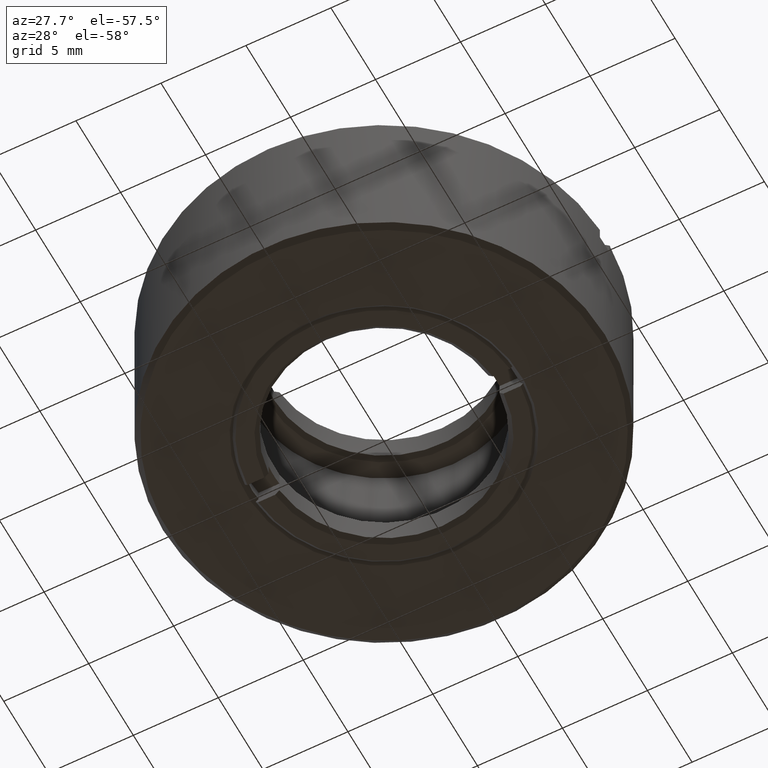
[diagram: clean part render]
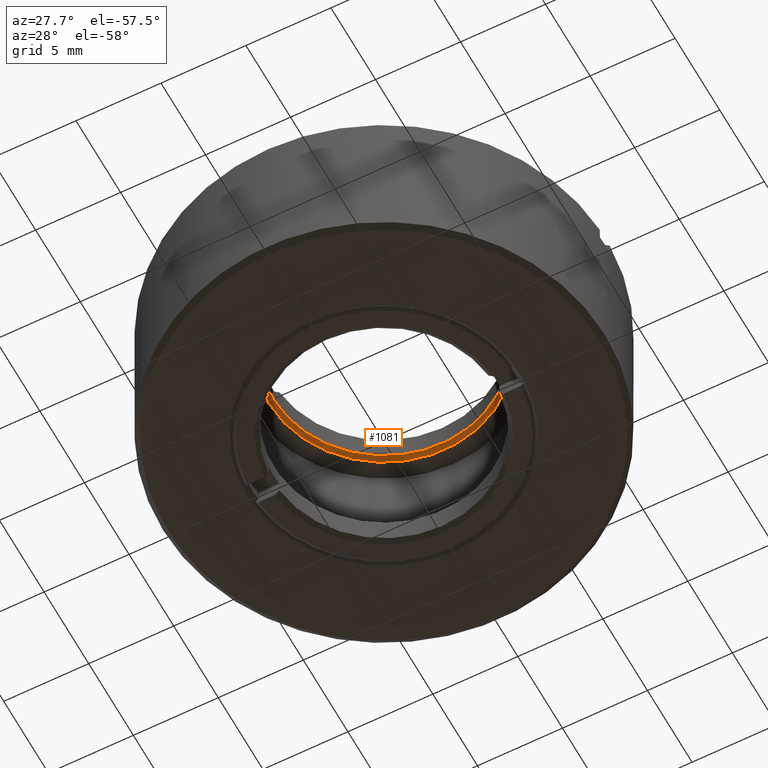
[diagram: same view with one face highlighted and labeled with its STEP entity id]
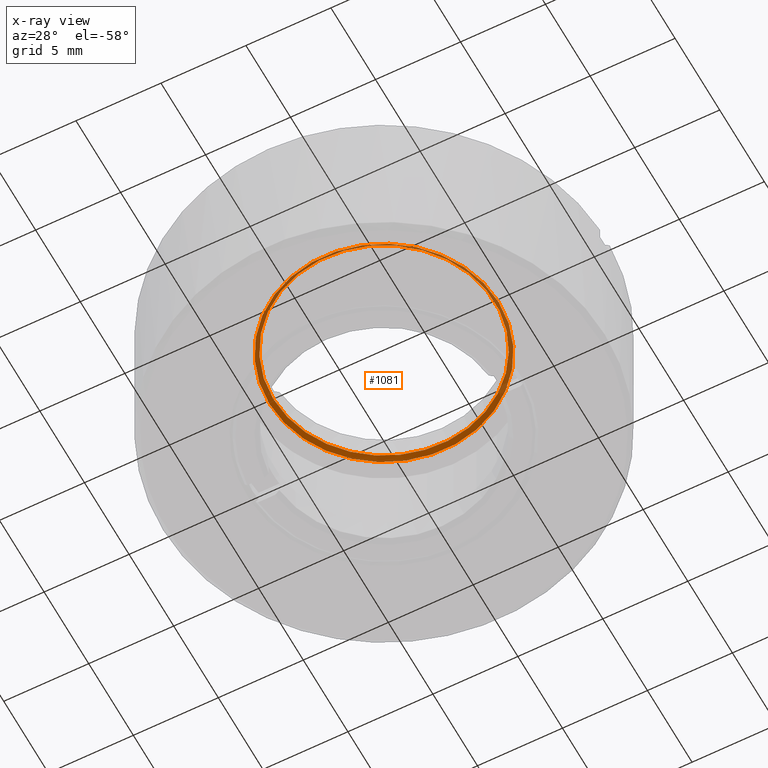
[diagram: x-ray of the same camera — body ghosted, the highlighted face saturated]
A machine part, auxiliary view. The second image highlights one B-rep face of the part: STEP entity #1081.
The next image is the same camera in x-ray: the body ghosted, the highlighted face saturated — about 45% of this face is hidden behind the body in this view.
In plain terms, the highlighted conical surface has half-angle 45 deg.
Its self-contained STEP definition (entity closure, byte-faithful):
#236 = FACE_BOUND ( 'NONE', #389, .T. ) ;
#269 = VERTEX_POINT ( 'NONE', #525 ) ;
#273 = FACE_OUTER_BOUND ( 'NONE', #1245, .T. ) ;
#298 = CONICAL_SURFACE ( 'NONE', #788, 6.749999999897227099, 0.7853981632837614413 ) ;
#377 = DIRECTION ( 'NONE',  ( 0.000000000000000000, 0.000000000000000000, -1.000000000000000000 ) ) ;
#389 = EDGE_LOOP ( 'NONE', ( #548 ) ) ;
#456 = ORIENTED_EDGE ( 'NONE', *, *, #1191, .T. ) ;
#483 = DIRECTION ( 'NONE',  ( -1.000000000000000000, 0.000000000000000000, 0.000000000000000000 ) ) ;
#510 = CARTESIAN_POINT ( 'NONE',  ( 0.000000000000000000, 0.000000000000000000, 3.000000000104137143 ) ) ;
#525 = CARTESIAN_POINT ( 'NONE',  ( -6.749999999954070518, 0.000000000000000000, 3.000000000047293724 ) ) ;
#548 = ORIENTED_EDGE ( 'NONE', *, *, #1070, .F. ) ;
#597 = DIRECTION ( 'NONE',  ( 0.000000000000000000, 0.000000000000000000, -1.000000000000000000 ) ) ;
#614 = DIRECTION ( 'NONE',  ( -1.000000000000000000, 0.000000000000000000, 0.000000000000000000 ) ) ;
#788 = AXIS2_PLACEMENT_3D ( 'NONE', #510, #597, #1258 ) ;
#798 = CARTESIAN_POINT ( 'NONE',  ( -6.500000000073669071, 0.000000000000000000, 3.249999999984538590 ) ) ;
#976 = CARTESIAN_POINT ( 'NONE',  ( 0.000000000000000000, 0.000000000000000000, 3.249999999984538590 ) ) ;
#982 = CARTESIAN_POINT ( 'NONE',  ( 0.000000000000000000, 0.000000000000000000, 3.000000000047293724 ) ) ;
#1029 = CIRCLE ( 'NONE', #1231, 6.749999999954070518 ) ;
#1070 = EDGE_CURVE ( 'NONE', #1254, #1254, #1181, .T. ) ;
#1081 = ADVANCED_FACE ( 'NONE', ( #273, #236 ), #298, .F. ) ;
#1099 = AXIS2_PLACEMENT_3D ( 'NONE', #976, #1473, #614 ) ;
#1181 = CIRCLE ( 'NONE', #1099, 6.500000000073669071 ) ;
#1191 = EDGE_CURVE ( 'NONE', #269, #269, #1029, .T. ) ;
#1231 = AXIS2_PLACEMENT_3D ( 'NONE', #982, #377, #483 ) ;
#1245 = EDGE_LOOP ( 'NONE', ( #456 ) ) ;
#1254 = VERTEX_POINT ( 'NONE', #798 ) ;
#1258 = DIRECTION ( 'NONE',  ( -1.000000000000000000, 0.000000000000000000, 0.000000000000000000 ) ) ;
#1473 = DIRECTION ( 'NONE',  ( -0.000000000000000000, -0.000000000000000000, -1.000000000000000000 ) ) ;